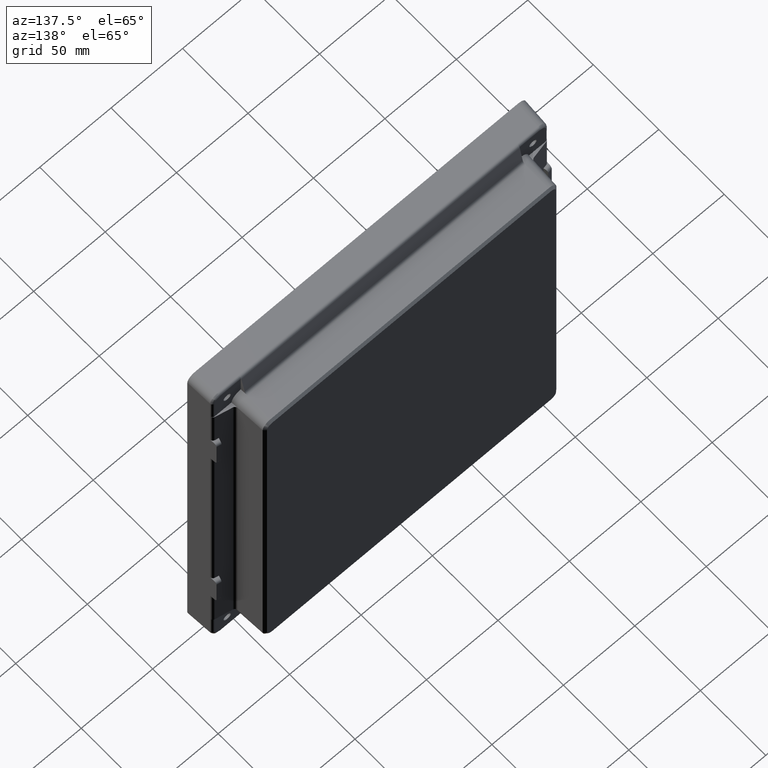
[diagram: clean part render]
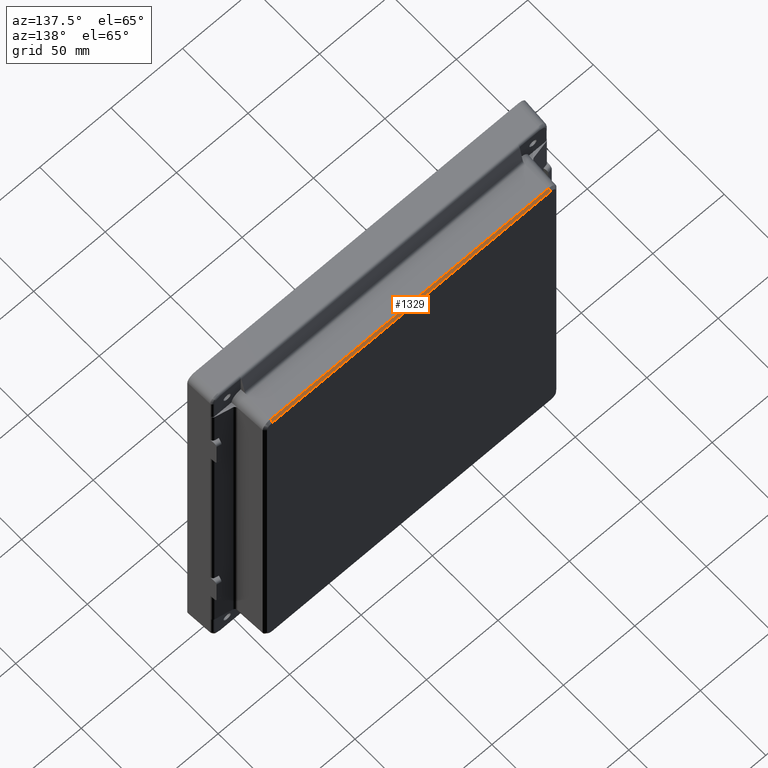
[diagram: same view with one face highlighted and labeled with its STEP entity id]
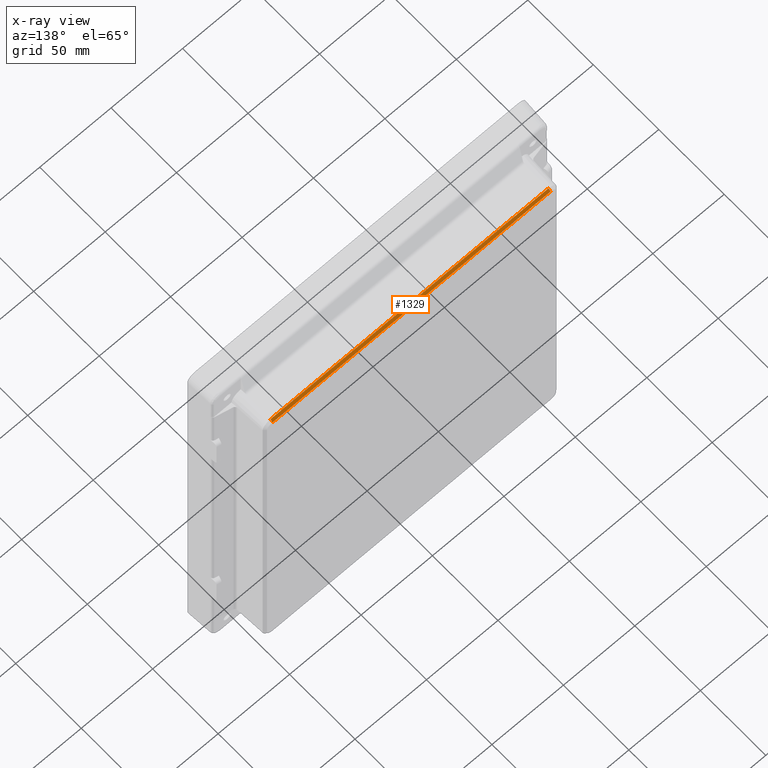
[diagram: x-ray of the same camera — body ghosted, the highlighted face saturated]
A machine part, auxiliary view. The second image highlights one B-rep face of the part: STEP entity #1329.
The next image is the same camera in x-ray: the body ghosted, the highlighted face saturated — about 0% of this face is hidden behind the body in this view.
In plain terms, the highlighted planar face has unit normal (0, -0.7431, -0.6691).
Its self-contained STEP definition (entity closure, byte-faithful):
#137 = CARTESIAN_POINT ( 'NONE',  ( -97.22567306322645200, 32.50205569786808700, 128.7966394387410100 ) ) ;
#904 = CARTESIAN_POINT ( 'NONE',  ( -104.5000000000000100, 34.00000000000000000, 127.1330037502762300 ) ) ;
#955 = VERTEX_POINT ( 'NONE', #5729 ) ;
#1203 = VERTEX_POINT ( 'NONE', #4310 ) ;
#1328 = EDGE_CURVE ( 'NONE', #955, #5130, #1914, .T. ) ;
#1329 = ADVANCED_FACE ( 'NONE', ( #5409 ), #4552, .F. ) ;
#1737 = EDGE_CURVE ( 'NONE', #1203, #5130, #1741, .T. ) ;
#1741 = LINE ( 'NONE', #4737, #3688 ) ;
#1914 = B_SPLINE_CURVE_WITH_KNOTS ( 'NONE', 3,
 ( #6577, #3470, #5059, #3492 ),
 .UNSPECIFIED., .F., .F.,
 ( 4, 4 ),
 ( 0.0000000000000000000, 1.000000000000000000 ),
 .UNSPECIFIED. ) ;
#1948 = DIRECTION ( 'NONE',  ( 0.0000000000000000000, 0.6691306063588564600, -0.7431448254773958000 ) ) ;
#2302 = LINE ( 'NONE', #137, #4716 ) ;
#2321 = ORIENTED_EDGE ( 'NONE', *, *, #1737, .F. ) ;
#2418 = DIRECTION ( 'NONE',  ( 0.0000000000000000000, -0.7431448254773958000, -0.6691306063588564600 ) ) ;
#2430 = CARTESIAN_POINT ( 'NONE',  ( -97.30417699759087200, 32.50205569786810900, 128.7966394387410100 ) ) ;
#3018 = AXIS2_PLACEMENT_3D ( 'NONE', #904, #2418, #1948 ) ;
#3028 = ORIENTED_EDGE ( 'NONE', *, *, #6697, .F. ) ;
#3205 = CARTESIAN_POINT ( 'NONE',  ( -97.30417699759087200, 32.50205569786810900, 128.7966394387410100 ) ) ;
#3470 = CARTESIAN_POINT ( 'NONE',  ( 97.30417699759088600, 33.00137046524539400, 128.2420942092527400 ) ) ;
#3492 = CARTESIAN_POINT ( 'NONE',  ( 97.30417699759088600, 34.00000000000000000, 127.1330037502762300 ) ) ;
#3500 = ORIENTED_EDGE ( 'NONE', *, *, #1328, .T. ) ;
#3688 = VECTOR ( 'NONE', #5769, 1000.000000000000000 ) ;
#3865 = CARTESIAN_POINT ( 'NONE',  ( 97.30417699759088600, 34.00000000000000000, 127.1330037502762300 ) ) ;
#4219 = ORIENTED_EDGE ( 'NONE', *, *, #5709, .F. ) ;
#4310 = CARTESIAN_POINT ( 'NONE',  ( -97.30417699759085800, 34.00000000000000000, 127.1330037502762600 ) ) ;
#4552 = PLANE ( 'NONE',  #3018 ) ;
#4716 = VECTOR ( 'NONE', #5847, 1000.000000000000000 ) ;
#4737 = CARTESIAN_POINT ( 'NONE',  ( 97.22567306322643800, 34.00000000000000000, 127.1330037502762300 ) ) ;
#4810 = B_SPLINE_CURVE_WITH_KNOTS ( 'NONE', 1,
 ( #2430, #6587 ),
 .UNSPECIFIED., .F., .F.,
 ( 2, 2 ),
 ( 0.0000000000000000000, 1.000000000000000000 ),
 .UNSPECIFIED. ) ;
#5003 = EDGE_LOOP ( 'NONE', ( #3500, #2321, #4219, #3028 ) ) ;
#5059 = CARTESIAN_POINT ( 'NONE',  ( 97.30417699759088600, 33.50068523262270000, 127.6875489797644700 ) ) ;
#5130 = VERTEX_POINT ( 'NONE', #3865 ) ;
#5409 = FACE_OUTER_BOUND ( 'NONE', #5003, .T. ) ;
#5420 = VERTEX_POINT ( 'NONE', #3205 ) ;
#5709 = EDGE_CURVE ( 'NONE', #5420, #1203, #4810, .T. ) ;
#5729 = CARTESIAN_POINT ( 'NONE',  ( 97.30417699759087200, 32.50205569786810900, 128.7966394387410100 ) ) ;
#5769 = DIRECTION ( 'NONE',  ( 1.000000000000000000, 0.0000000000000000000, 0.0000000000000000000 ) ) ;
#5847 = DIRECTION ( 'NONE',  ( -1.000000000000000000, -0.0000000000000000000, -0.0000000000000000000 ) ) ;
#6577 = CARTESIAN_POINT ( 'NONE',  ( 97.30417699759087200, 32.50205569786810900, 128.7966394387410100 ) ) ;
#6587 = CARTESIAN_POINT ( 'NONE',  ( -97.30417699759085800, 34.00000000000000000, 127.1330037502762600 ) ) ;
#6697 = EDGE_CURVE ( 'NONE', #955, #5420, #2302, .T. ) ;